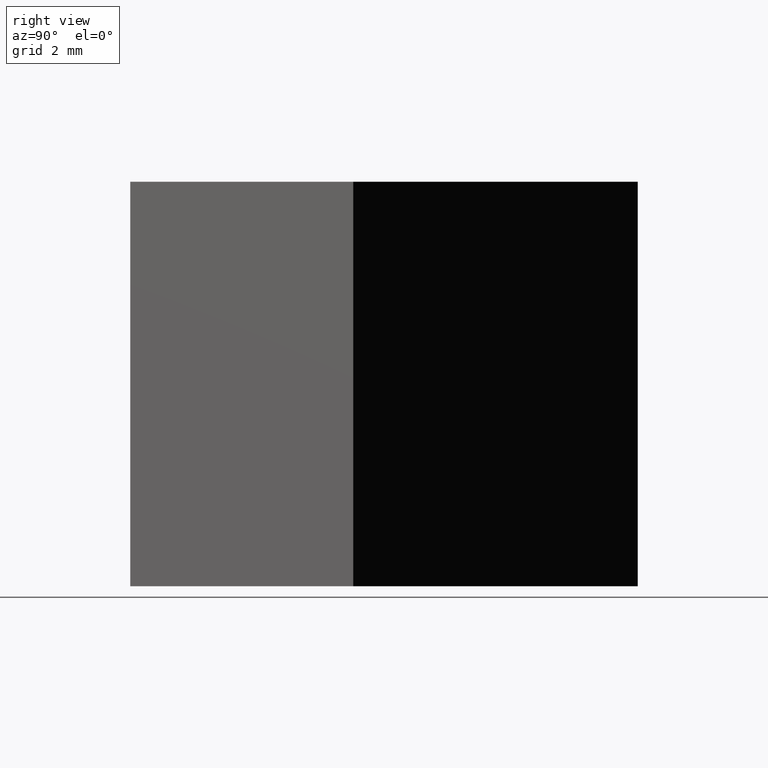
[diagram: clean part render]
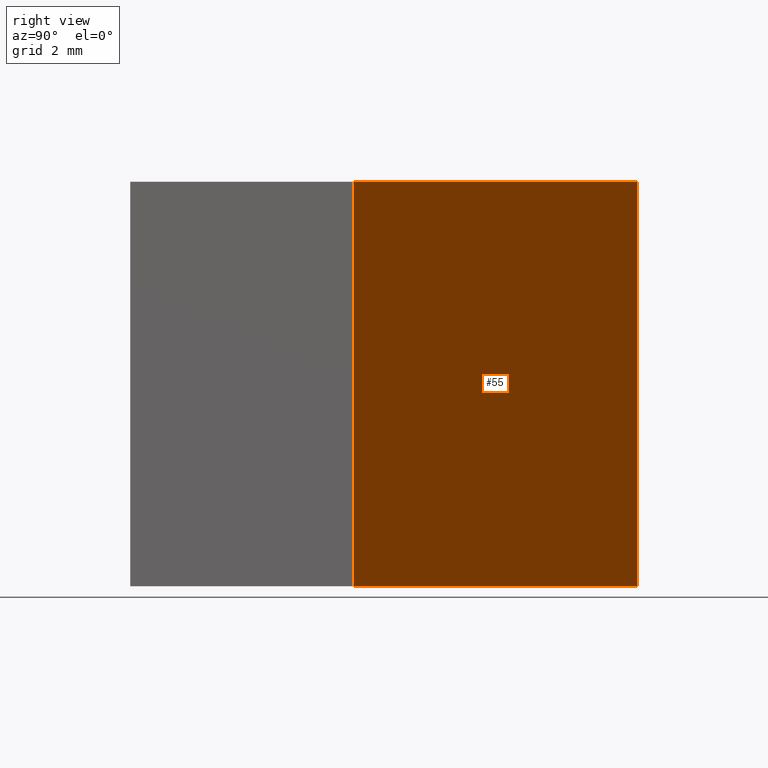
[diagram: same view with one face highlighted and labeled with its STEP entity id]
A machine part, right view. The second image highlights one B-rep face of the part: STEP entity #55.
In plain terms, the highlighted planar face has unit normal (-0.7032, -0.711, 0).
Its self-contained STEP definition (entity closure, byte-faithful):
#17 = VECTOR ( 'NONE', #84, 1000.000000000000000 ) ;
#23 = ORIENTED_EDGE ( 'NONE', *, *, #112, .T. ) ;
#28 = EDGE_CURVE ( 'NONE', #113, #129, #96, .T. ) ;
#34 = VECTOR ( 'NONE', #62, 1000.000000000000000 ) ;
#37 = EDGE_CURVE ( 'NONE', #129, #57, #99, .T. ) ;
#41 = ORIENTED_EDGE ( 'NONE', *, *, #37, .F. ) ;
#46 = DIRECTION ( 'NONE',  ( -0.0000000000000000000, -0.0000000000000000000, -1.000000000000000000 ) ) ;
#47 = VERTEX_POINT ( 'NONE', #66 ) ;
#48 = CARTESIAN_POINT ( 'NONE',  ( 13.19977079032643300, 9.118493995075059600, 15.00000000000000000 ) ) ;
#55 = ADVANCED_FACE ( 'NONE', ( #133 ), #115, .F. ) ;
#57 = VERTEX_POINT ( 'NONE', #151 ) ;
#59 = LINE ( 'NONE', #61, #154 ) ;
#61 = CARTESIAN_POINT ( 'NONE',  ( 13.19977079032643300, 9.118493995075059600, 15.00000000000000000 ) ) ;
#62 = DIRECTION ( 'NONE',  ( -0.0000000000000000000, -0.0000000000000000000, -1.000000000000000000 ) ) ;
#65 = VECTOR ( 'NONE', #76, 1000.000000000000000 ) ;
#66 = CARTESIAN_POINT ( 'NONE',  ( 13.19977079032643300, 9.118493995075059600, 0.0000000000000000000 ) ) ;
#69 = ORIENTED_EDGE ( 'NONE', *, *, #28, .F. ) ;
#73 = EDGE_CURVE ( 'NONE', #47, #57, #122, .T. ) ;
#76 = DIRECTION ( 'NONE',  ( -0.7109728236074627200, 0.7032194850056643400, 0.0000000000000000000 ) ) ;
#77 = CARTESIAN_POINT ( 'NONE',  ( 2.535178436214490500, 19.66678627016002400, 15.00000000000000000 ) ) ;
#78 = ORIENTED_EDGE ( 'NONE', *, *, #73, .T. ) ;
#80 = EDGE_LOOP ( 'NONE', ( #78, #41, #69, #23 ) ) ;
#84 = DIRECTION ( 'NONE',  ( -0.7109728236074627200, 0.7032194850056643400, 0.0000000000000000000 ) ) ;
#95 = CARTESIAN_POINT ( 'NONE',  ( 13.19977079032643300, 9.118493995075059600, 0.0000000000000000000 ) ) ;
#96 = LINE ( 'NONE', #48, #65 ) ;
#99 = LINE ( 'NONE', #108, #34 ) ;
#108 = CARTESIAN_POINT ( 'NONE',  ( 2.535178436214490500, 19.66678627016002400, 15.00000000000000000 ) ) ;
#112 = EDGE_CURVE ( 'NONE', #113, #47, #59, .T. ) ;
#113 = VERTEX_POINT ( 'NONE', #149 ) ;
#115 = PLANE ( 'NONE',  #168 ) ;
#122 = LINE ( 'NONE', #95, #17 ) ;
#127 = DIRECTION ( 'NONE',  ( -0.7032194850056643400, -0.7109728236074627200, 0.0000000000000000000 ) ) ;
#129 = VERTEX_POINT ( 'NONE', #77 ) ;
#133 = FACE_OUTER_BOUND ( 'NONE', #80, .T. ) ;
#137 = DIRECTION ( 'NONE',  ( 0.7109728236074627200, -0.7032194850056643400, 0.0000000000000000000 ) ) ;
#149 = CARTESIAN_POINT ( 'NONE',  ( 13.19977079032643300, 9.118493995075059600, 15.00000000000000000 ) ) ;
#150 = CARTESIAN_POINT ( 'NONE',  ( 13.19977079032643300, 9.118493995075059600, 15.00000000000000000 ) ) ;
#151 = CARTESIAN_POINT ( 'NONE',  ( 2.535178436214490500, 19.66678627016002400, 0.0000000000000000000 ) ) ;
#154 = VECTOR ( 'NONE', #46, 1000.000000000000000 ) ;
#168 = AXIS2_PLACEMENT_3D ( 'NONE', #150, #127, #137 ) ;